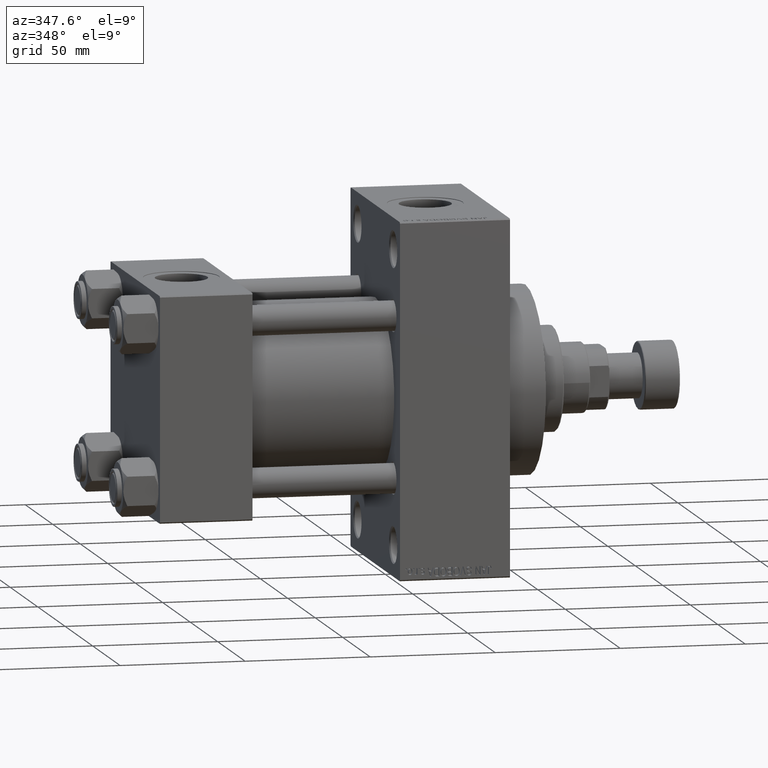
[diagram: clean part render]
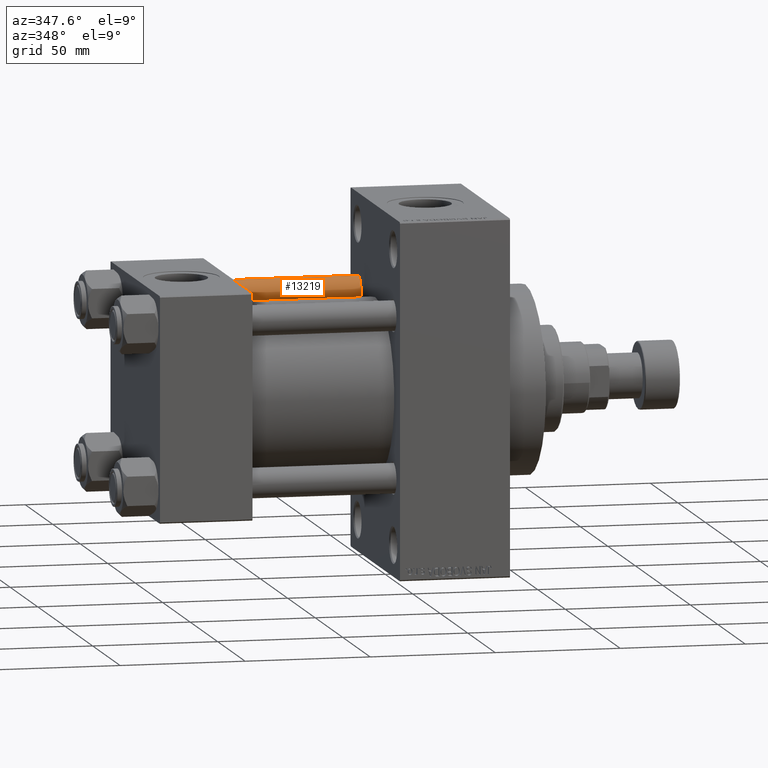
[diagram: same view with one face highlighted and labeled with its STEP entity id]
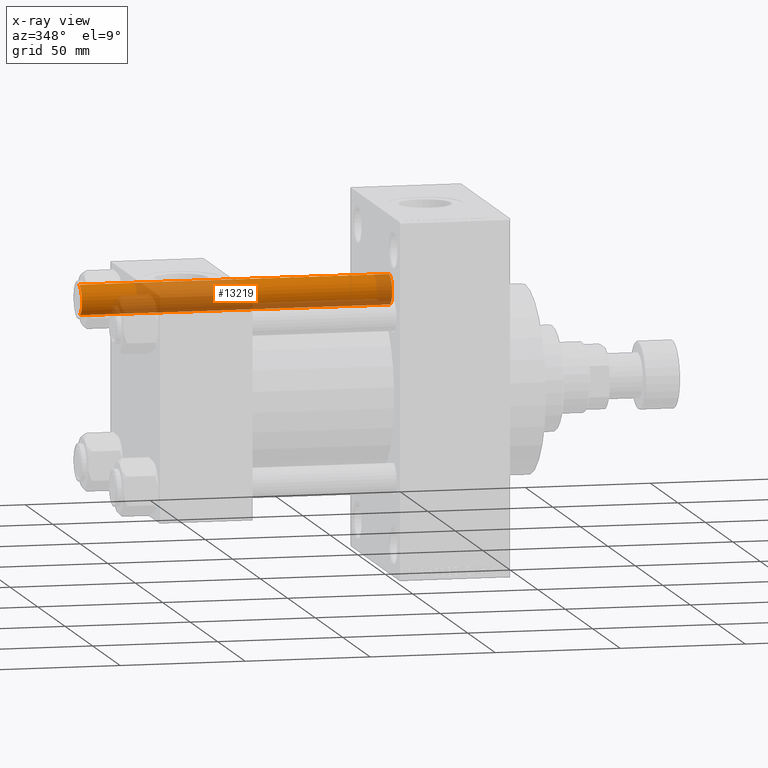
[diagram: x-ray of the same camera — body ghosted, the highlighted face saturated]
A machine part, auxiliary view. The second image highlights one B-rep face of the part: STEP entity #13219.
The next image is the same camera in x-ray: the body ghosted, the highlighted face saturated — about 54% of this face is hidden behind the body in this view.
In plain terms, the highlighted cylindrical surface (edge-blend (fillet) strip) has radius 6 mm, axis along (1, -0, -0).
Its self-contained STEP definition (entity closure, byte-faithful):
#2410 = DIRECTION ( 'NONE',  ( -1.000000000000000000, 0.000000000000000000, 0.000000000000000000 ) ) ;
#3820 = ORIENTED_EDGE ( 'NONE', *, *, #21062, .F. ) ;
#5232 = DIRECTION ( 'NONE',  ( -0.000000000000000000, -0.000000000000000000, -1.000000000000000000 ) ) ;
#10832 = DIRECTION ( 'NONE',  ( -0.000000000000000000, -0.000000000000000000, -1.000000000000000000 ) ) ;
#13219 = ADVANCED_FACE ( 'NONE', ( #43154 ), #20737, .T. ) ;
#13326 = DIRECTION ( 'NONE',  ( -0.000000000000000000, -0.000000000000000000, 1.000000000000000000 ) ) ;
#13418 = CARTESIAN_POINT ( 'NONE',  ( 0.000000000000000000, 0.000000000000000000, 124.5000000000000000 ) ) ;
#13539 = ORIENTED_EDGE ( 'NONE', *, *, #20812, .T. ) ;
#14482 = EDGE_CURVE ( 'NONE', #46031, #18221, #16332, .T. ) ;
#16332 = LINE ( 'NONE', #34654, #43932 ) ;
#18221 = VERTEX_POINT ( 'NONE', #29910 ) ;
#20737 = CYLINDRICAL_SURFACE ( 'NONE', #45449, 6.000000000000000888 ) ;
#20812 = EDGE_CURVE ( 'NONE', #18221, #45967, #28646, .T. ) ;
#21062 = EDGE_CURVE ( 'NONE', #25965, #45967, #28680, .T. ) ;
#22941 = CARTESIAN_POINT ( 'NONE',  ( 6.000000000000000888, 7.347880794884120722E-16, 0.4999999999999865663 ) ) ;
#23179 = CARTESIAN_POINT ( 'NONE',  ( -6.000000000000000888, 0.000000000000000000, 124.5000000000000000 ) ) ;
#24363 = DIRECTION ( 'NONE',  ( -0.000000000000000000, -0.000000000000000000, -1.000000000000000000 ) ) ;
#24498 = EDGE_CURVE ( 'NONE', #25965, #46031, #25675, .T. ) ;
#25675 = CIRCLE ( 'NONE', #31820, 6.000000000000000888 ) ;
#25965 = VERTEX_POINT ( 'NONE', #45419 ) ;
#27619 = ORIENTED_EDGE ( 'NONE', *, *, #14482, .T. ) ;
#28027 = CARTESIAN_POINT ( 'NONE',  ( 0.000000000000000000, 0.000000000000000000, 0.4999999999999865663 ) ) ;
#28646 = CIRCLE ( 'NONE', #32475, 6.000000000000000888 ) ;
#28680 = LINE ( 'NONE', #31354, #47135 ) ;
#29080 = DIRECTION ( 'NONE',  ( 1.000000000000000000, 0.000000000000000000, 0.000000000000000000 ) ) ;
#29910 = CARTESIAN_POINT ( 'NONE',  ( -6.000000000000000888, 0.000000000000000000, 0.4999999999999865663 ) ) ;
#31354 = CARTESIAN_POINT ( 'NONE',  ( 6.000000000000000888, 7.347880794884120722E-16, 125.0000000000000000 ) ) ;
#31820 = AXIS2_PLACEMENT_3D ( 'NONE', #13418, #31981, #29080 ) ;
#31981 = DIRECTION ( 'NONE',  ( 0.000000000000000000, 0.000000000000000000, -1.000000000000000000 ) ) ;
#32475 = AXIS2_PLACEMENT_3D ( 'NONE', #28027, #13326, #42733 ) ;
#32548 = CARTESIAN_POINT ( 'NONE',  ( 0.000000000000000000, 0.000000000000000000, 125.0000000000000000 ) ) ;
#34654 = CARTESIAN_POINT ( 'NONE',  ( -6.000000000000000888, 0.000000000000000000, 125.0000000000000000 ) ) ;
#40254 = ORIENTED_EDGE ( 'NONE', *, *, #24498, .T. ) ;
#42733 = DIRECTION ( 'NONE',  ( 1.000000000000000000, 0.000000000000000000, 0.000000000000000000 ) ) ;
#43154 = FACE_OUTER_BOUND ( 'NONE', #44922, .T. ) ;
#43932 = VECTOR ( 'NONE', #5232, 1000.000000000000000 ) ;
#44922 = EDGE_LOOP ( 'NONE', ( #3820, #40254, #27619, #13539 ) ) ;
#45419 = CARTESIAN_POINT ( 'NONE',  ( 6.000000000000000888, 7.347880794884120722E-16, 124.5000000000000000 ) ) ;
#45449 = AXIS2_PLACEMENT_3D ( 'NONE', #32548, #10832, #2410 ) ;
#45967 = VERTEX_POINT ( 'NONE', #22941 ) ;
#46031 = VERTEX_POINT ( 'NONE', #23179 ) ;
#47135 = VECTOR ( 'NONE', #24363, 1000.000000000000000 ) ;